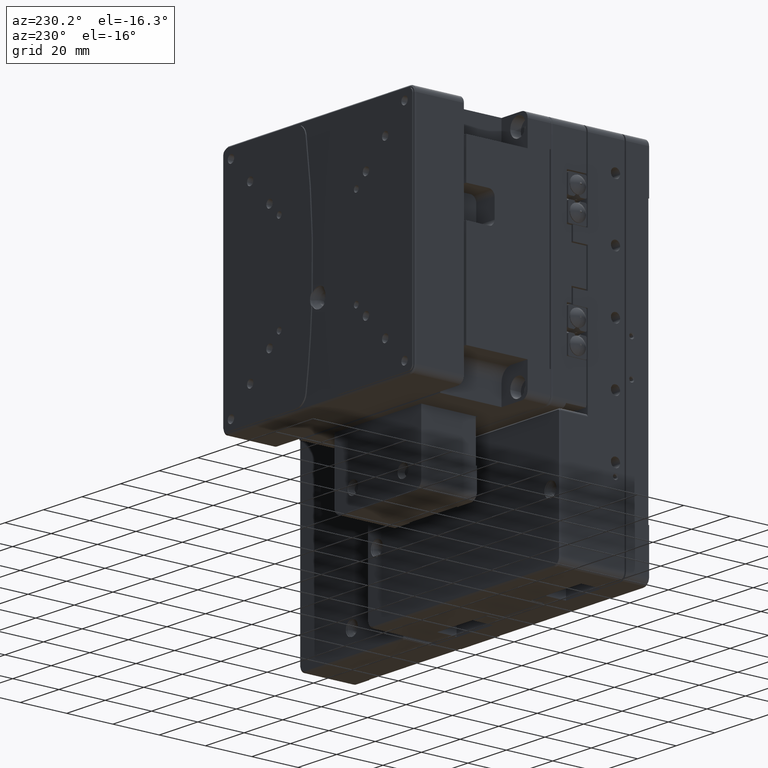
[diagram: clean part render]
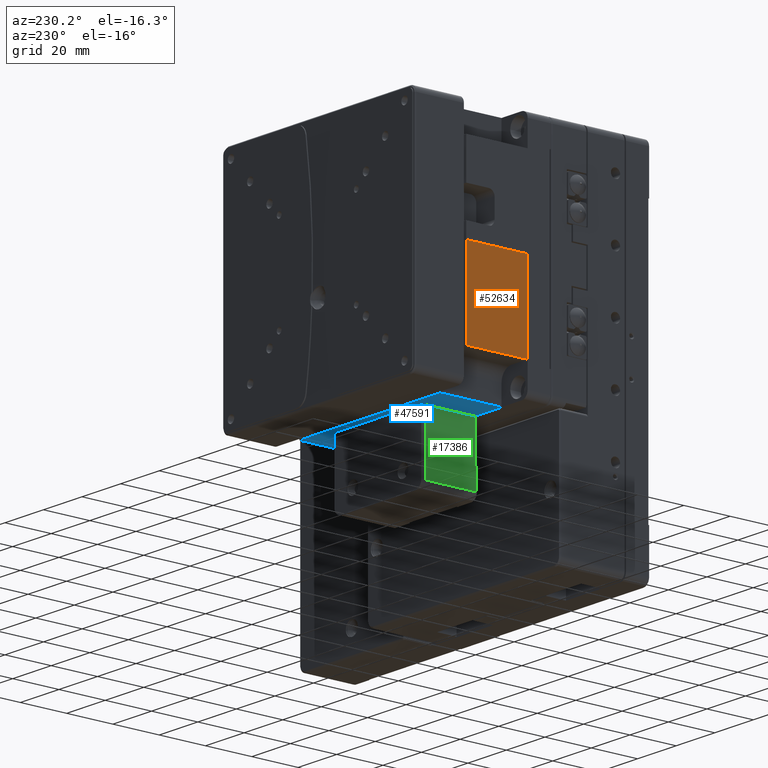
[diagram: same view with three faces highlighted in distinct colors, each labeled with its STEP entity id]
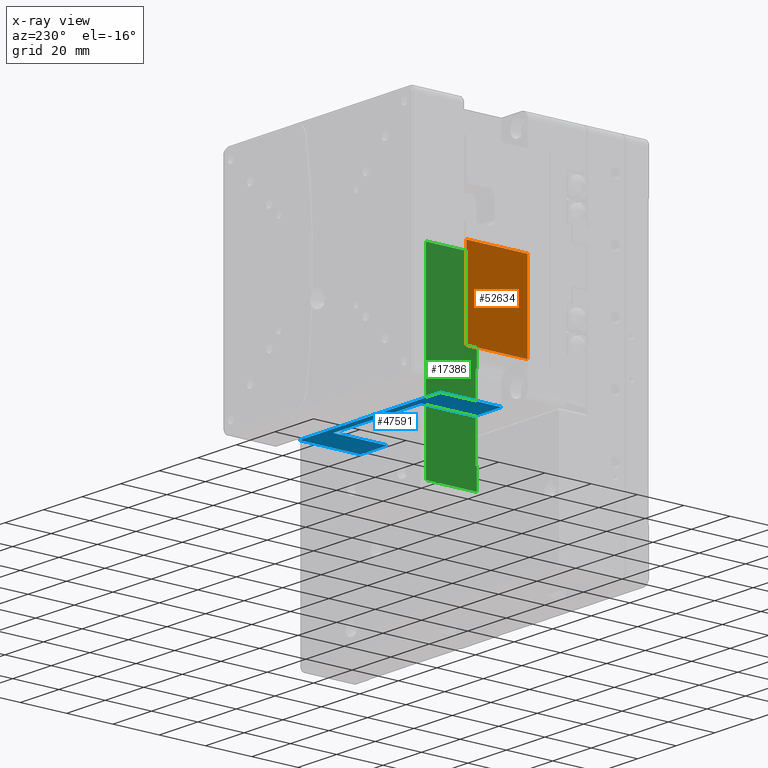
[diagram: x-ray of the same camera — body ghosted, the three highlighted faces saturated]
A machine part, auxiliary view with three faces highlighted in distinct colors.
The next image is the same camera in x-ray (body ghosted, the three faces saturated) — at least one of them is partly hidden behind the body in this view.
Their STEP definitions:

[orange] entity #52634 — the highlighted planar face has unit normal (1, 0, -0).
#678 = AXIS2_PLACEMENT_3D ( 'NONE', #17239, #21417, #47186 ) ;
#3614 = CARTESIAN_POINT ( 'NONE',  ( -50.00000000000001421, 52.50000000000002132, 2.471627407274680228E-14 ) ) ;
#3728 = ORIENTED_EDGE ( 'NONE', *, *, #24943, .T. ) ;
#4061 = CARTESIAN_POINT ( 'NONE',  ( -50.00000000000003553, 79.00000000000001421, 2.823262324349119962E-14 ) ) ;
#5109 = DIRECTION ( 'NONE',  ( -3.812484297624379892E-23, 1.000000000000000000, -3.650532473168982942E-23 ) ) ;
#5382 = LINE ( 'NONE', #8752, #29717 ) ;
#8752 = CARTESIAN_POINT ( 'NONE',  ( -50.00000000000000000, 205.8033988749895116, 2.471626847635643200E-14 ) ) ;
#9137 = ORIENTED_EDGE ( 'NONE', *, *, #23238, .T. ) ;
#9251 = VERTEX_POINT ( 'NONE', #52893 ) ;
#12404 = CARTESIAN_POINT ( 'NONE',  ( -50.00000000000008527, 52.50000000000000711, -36.49999999999997158 ) ) ;
#16577 = LINE ( 'NONE', #12404, #23827 ) ;
#17239 = CARTESIAN_POINT ( 'NONE',  ( -50.00000000000000000, 205.8033988749895116, 2.471626847635643200E-14 ) ) ;
#17506 = PLANE ( 'NONE',  #678 ) ;
#17876 = LINE ( 'NONE', #47799, #52805 ) ;
#18340 = VERTEX_POINT ( 'NONE', #26532 ) ;
#21417 = DIRECTION ( 'NONE',  ( 1.000000000000000000, 3.812484297624374602E-23, -1.387778780781445281E-15 ) ) ;
#23238 = EDGE_CURVE ( 'NONE', #33397, #18340, #5382, .T. ) ;
#23827 = VECTOR ( 'NONE', #29452, 1000.000000000000000 ) ;
#24943 = EDGE_CURVE ( 'NONE', #9251, #48479, #16577, .T. ) ;
#26532 = CARTESIAN_POINT ( 'NONE',  ( -50.00000000000001421, 79.00000000000001421, 2.357542518343177120E-14 ) ) ;
#28168 = ORIENTED_EDGE ( 'NONE', *, *, #44319, .T. ) ;
#29428 = ORIENTED_EDGE ( 'NONE', *, *, #42263, .F. ) ;
#29452 = DIRECTION ( 'NONE',  ( 3.812484297624379892E-23, -1.000000000000000000, 3.650532473168982942E-23 ) ) ;
#29717 = VECTOR ( 'NONE', #5109, 1000.000000000000000 ) ;
#30113 = FACE_OUTER_BOUND ( 'NONE', #33962, .T. ) ;
#33161 = DIRECTION ( 'NONE',  ( 1.387778780781445281E-15, 3.650532473168988232E-23, 1.000000000000000000 ) ) ;
#33397 = VERTEX_POINT ( 'NONE', #3614 ) ;
#33962 = EDGE_LOOP ( 'NONE', ( #3728, #28168, #9137, #29428 ) ) ;
#33985 = LINE ( 'NONE', #4061, #36511 ) ;
#36511 = VECTOR ( 'NONE', #33161, 1000.000000000000000 ) ;
#42263 = EDGE_CURVE ( 'NONE', #9251, #18340, #33985, .T. ) ;
#44319 = EDGE_CURVE ( 'NONE', #48479, #33397, #17876, .T. ) ;
#47186 = DIRECTION ( 'NONE',  ( -1.387778780781445281E-15, -3.650532473168988232E-23, -1.000000000000000000 ) ) ;
#47799 = CARTESIAN_POINT ( 'NONE',  ( -50.00000000000003553, 52.50000000000001421, 2.823262421088230864E-14 ) ) ;
#48479 = VERTEX_POINT ( 'NONE', #51486 ) ;
#51460 = DIRECTION ( 'NONE',  ( 1.387778780781445281E-15, 3.650532473168988232E-23, 1.000000000000000000 ) ) ;
#51486 = CARTESIAN_POINT ( 'NONE',  ( -50.00000000000007816, 52.50000000000000711, -36.49999999999997158 ) ) ;
#52634 = ADVANCED_FACE ( 'NONE', ( #30113 ), #17506, .F. ) ;
#52805 = VECTOR ( 'NONE', #51460, 1000.000000000000000 ) ;
#52893 = CARTESIAN_POINT ( 'NONE',  ( -50.00000000000007816, 79.00000000000001421, -36.49999999999997158 ) ) ;

[blue] entity #47591 — the highlighted planar face has unit normal (0, 0, 1).
#1571 = VECTOR ( 'NONE', #18427, 1000.000000000000000 ) ;
#2184 = VERTEX_POINT ( 'NONE', #8992 ) ;
#2923 = AXIS2_PLACEMENT_3D ( 'NONE', #36901, #37461, #12569 ) ;
#3359 = VECTOR ( 'NONE', #42180, 1000.000000000000000 ) ;
#4247 = DIRECTION ( 'NONE',  ( 3.812484297624379892E-23, -1.000000000000000000, 3.650532473168982942E-23 ) ) ;
#4279 = VECTOR ( 'NONE', #37604, 1000.000000000000000 ) ;
#4349 = CARTESIAN_POINT ( 'NONE',  ( -22.70000000000008811, 52.50000000000001421, -50.00000000000000711 ) ) ;
#5314 = DIRECTION ( 'NONE',  ( -1.000000000000000000, -3.812484297624374602E-23, 1.387778780781445281E-15 ) ) ;
#6467 = CARTESIAN_POINT ( 'NONE',  ( 36.49999999999990052, 52.50000000000000711, -50.00000000000009948 ) ) ;
#7269 = EDGE_CURVE ( 'NONE', #15963, #2184, #12943, .T. ) ;
#8376 = VECTOR ( 'NONE', #4247, 1000.000000000000000 ) ;
#8488 = DIRECTION ( 'NONE',  ( -3.812484297624379892E-23, 1.000000000000000000, -3.650532473168982942E-23 ) ) ;
#8992 = CARTESIAN_POINT ( 'NONE',  ( 22.69999999999993889, 75.80000000000001137, -50.00000000000007816 ) ) ;
#9152 = ORIENTED_EDGE ( 'NONE', *, *, #13428, .T. ) ;
#9738 = VERTEX_POINT ( 'NONE', #53019 ) ;
#10053 = CARTESIAN_POINT ( 'NONE',  ( -7.632783332422790971E-14, 52.50000000000001421, -50.00000000000003553 ) ) ;
#10383 = DIRECTION ( 'NONE',  ( -1.000000000000000000, 1.528390346484439017E-16, 1.387778780781445281E-15 ) ) ;
#11487 = PLANE ( 'NONE',  #2923 ) ;
#11775 = VERTEX_POINT ( 'NONE', #6467 ) ;
#12569 = DIRECTION ( 'NONE',  ( 1.000000000000000000, 3.812484297624374015E-23, -1.526556658859589849E-15 ) ) ;
#12943 = LINE ( 'NONE', #50760, #46919 ) ;
#13086 = ORIENTED_EDGE ( 'NONE', *, *, #13421, .F. ) ;
#13421 = EDGE_CURVE ( 'NONE', #9738, #30630, #39405, .T. ) ;
#13428 = EDGE_CURVE ( 'NONE', #11775, #15963, #47806, .T. ) ;
#15963 = VERTEX_POINT ( 'NONE', #24513 ) ;
#16850 = EDGE_CURVE ( 'NONE', #2184, #50230, #24948, .T. ) ;
#16939 = ORIENTED_EDGE ( 'NONE', *, *, #34200, .T. ) ;
#17652 = LINE ( 'NONE', #21807, #8376 ) ;
#17668 = ORIENTED_EDGE ( 'NONE', *, *, #7269, .T. ) ;
#17881 = CARTESIAN_POINT ( 'NONE',  ( -7.632783433453625790E-14, 79.00000000000001421, -50.00000000000004974 ) ) ;
#18427 = DIRECTION ( 'NONE',  ( -1.000000000000000000, -3.812484297624374602E-23, 1.387778780781445281E-15 ) ) ;
#19859 = EDGE_CURVE ( 'NONE', #32525, #36714, #20875, .T. ) ;
#20147 = VECTOR ( 'NONE', #42314, 1000.000000000000000 ) ;
#20536 = LINE ( 'NONE', #33145, #4279 ) ;
#20704 = EDGE_CURVE ( 'NONE', #9738, #11775, #37559, .T. ) ;
#20875 = LINE ( 'NONE', #33791, #3359 ) ;
#21807 = CARTESIAN_POINT ( 'NONE',  ( -22.70000000000009166, 52.50000000000001421, -50.00000000000000711 ) ) ;
#24513 = CARTESIAN_POINT ( 'NONE',  ( 22.69999999999994245, 52.50000000000001421, -50.00000000000007105 ) ) ;
#24948 = LINE ( 'NONE', #42021, #30989 ) ;
#26753 = ORIENTED_EDGE ( 'NONE', *, *, #19859, .T. ) ;
#30630 = VERTEX_POINT ( 'NONE', #43302 ) ;
#30989 = VECTOR ( 'NONE', #10383, 1000.000000000000000 ) ;
#32525 = VERTEX_POINT ( 'NONE', #4349 ) ;
#33145 = CARTESIAN_POINT ( 'NONE',  ( -36.50000000000012790, 52.50000000000000711, -49.99999999999998579 ) ) ;
#33791 = CARTESIAN_POINT ( 'NONE',  ( -7.632783332422792233E-14, 52.50000000000001421, -50.00000000000004263 ) ) ;
#34200 = EDGE_CURVE ( 'NONE', #50230, #32525, #17652, .T. ) ;
#36714 = VERTEX_POINT ( 'NONE', #43787 ) ;
#36901 = CARTESIAN_POINT ( 'NONE',  ( -50.00000000000007105, 205.8033988749895116, -49.99999999999997158 ) ) ;
#37461 = DIRECTION ( 'NONE',  ( 1.526556658859589849E-15, 3.650532473168988820E-23, 1.000000000000000000 ) ) ;
#37559 = LINE ( 'NONE', #54661, #20147 ) ;
#37604 = DIRECTION ( 'NONE',  ( -3.812484297624379892E-23, 1.000000000000000000, -3.650532473168982942E-23 ) ) ;
#38082 = ORIENTED_EDGE ( 'NONE', *, *, #54155, .T. ) ;
#39043 = VECTOR ( 'NONE', #5314, 1000.000000000000000 ) ;
#39383 = EDGE_LOOP ( 'NONE', ( #51202, #9152, #17668, #39778, #16939, #26753, #38082, #13086 ) ) ;
#39405 = LINE ( 'NONE', #17881, #1571 ) ;
#39778 = ORIENTED_EDGE ( 'NONE', *, *, #16850, .T. ) ;
#42021 = CARTESIAN_POINT ( 'NONE',  ( -22.70000000000008455, 75.80000000000001137, -50.00000000000000711 ) ) ;
#42180 = DIRECTION ( 'NONE',  ( -1.000000000000000000, -3.812484297624374602E-23, 1.387778780781445281E-15 ) ) ;
#42314 = DIRECTION ( 'NONE',  ( 3.812484297624379892E-23, -1.000000000000000000, 3.650532473168982942E-23 ) ) ;
#43302 = CARTESIAN_POINT ( 'NONE',  ( -36.50000000000012790, 79.00000000000001421, -49.99999999999998579 ) ) ;
#43787 = CARTESIAN_POINT ( 'NONE',  ( -36.50000000000012790, 52.50000000000000711, -49.99999999999998579 ) ) ;
#46919 = VECTOR ( 'NONE', #8488, 1000.000000000000000 ) ;
#47591 = ADVANCED_FACE ( 'NONE', ( #55100 ), #11487, .F. ) ;
#47806 = LINE ( 'NONE', #10053, #39043 ) ;
#50230 = VERTEX_POINT ( 'NONE', #52246 ) ;
#50760 = CARTESIAN_POINT ( 'NONE',  ( 22.69999999999993534, 52.50000000000000711, -50.00000000000007816 ) ) ;
#51202 = ORIENTED_EDGE ( 'NONE', *, *, #20704, .T. ) ;
#52246 = CARTESIAN_POINT ( 'NONE',  ( -22.70000000000009166, 75.80000000000001137, -50.00000000000000711 ) ) ;
#53019 = CARTESIAN_POINT ( 'NONE',  ( 36.49999999999990052, 79.00000000000001421, -50.00000000000009948 ) ) ;
#54155 = EDGE_CURVE ( 'NONE', #36714, #30630, #20536, .T. ) ;
#54661 = CARTESIAN_POINT ( 'NONE',  ( 36.49999999999990052, 52.50000000000000711, -50.00000000000009948 ) ) ;
#55100 = FACE_OUTER_BOUND ( 'NONE', #39383, .T. ) ;

[green] entity #17386 — the highlighted planar face has unit normal (1, 0, -0).
#905 = ORIENTED_EDGE ( 'NONE', *, *, #2449, .T. ) ;
#932 = LINE ( 'NONE', #48481, #13799 ) ;
#1738 = ORIENTED_EDGE ( 'NONE', *, *, #1803, .F. ) ;
#1803 = EDGE_CURVE ( 'NONE', #9027, #53722, #34773, .T. ) ;
#2449 = EDGE_CURVE ( 'NONE', #36673, #29451, #49257, .T. ) ;
#4117 = VERTEX_POINT ( 'NONE', #17203 ) ;
#6676 = DIRECTION ( 'NONE',  ( -1.662198313704330060E-15, -3.650532473168989407E-23, -1.000000000000000000 ) ) ;
#7043 = CARTESIAN_POINT ( 'NONE',  ( -22.49999999999998934, 52.00000000000001421, 9.499999999999994671 ) ) ;
#7243 = CARTESIAN_POINT ( 'NONE',  ( -22.49999999999998934, 51.50000000000001421, 9.499999999999994671 ) ) ;
#7561 = EDGE_CURVE ( 'NONE', #39906, #44011, #49303, .T. ) ;
#8477 = CARTESIAN_POINT ( 'NONE',  ( -22.50000000000009592, 73.50000000000001421, -49.00000000000001421 ) ) ;
#8653 = EDGE_CURVE ( 'NONE', #36673, #47658, #932, .T. ) ;
#8875 = ORIENTED_EDGE ( 'NONE', *, *, #49723, .F. ) ;
#9027 = VERTEX_POINT ( 'NONE', #52333 ) ;
#9189 = CARTESIAN_POINT ( 'NONE',  ( -22.50000000000013145, 51.50000000000001421, -76.00000000000000000 ) ) ;
#10928 = DIRECTION ( 'NONE',  ( -3.812484297624379892E-23, 1.000000000000000000, -3.650532473168982942E-23 ) ) ;
#12167 = CARTESIAN_POINT ( 'NONE',  ( -22.50000000000000711, 73.50000000000001421, 6.499999999999995559 ) ) ;
#12980 = CARTESIAN_POINT ( 'NONE',  ( -22.49999999999998934, 172.8836844602375038, 9.499999999999994671 ) ) ;
#13799 = VECTOR ( 'NONE', #40074, 1000.000000000000000 ) ;
#15614 = LINE ( 'NONE', #7243, #38572 ) ;
#15969 = LINE ( 'NONE', #7043, #50755 ) ;
#17203 = CARTESIAN_POINT ( 'NONE',  ( -22.50000000000013145, 73.50000000000001421, -76.00000000000000000 ) ) ;
#17386 = ADVANCED_FACE ( 'NONE', ( #52142 ), #35057, .F. ) ;
#17437 = VECTOR ( 'NONE', #18794, 1000.000000000000000 ) ;
#18794 = DIRECTION ( 'NONE',  ( 3.812484297624379892E-23, -1.000000000000000000, 3.650532473168982942E-23 ) ) ;
#19855 = CARTESIAN_POINT ( 'NONE',  ( -22.50000000000005684, 52.00000000000001421, -33.50000000000001421 ) ) ;
#20621 = EDGE_CURVE ( 'NONE', #4117, #39906, #21318, .T. ) ;
#21093 = AXIS2_PLACEMENT_3D ( 'NONE', #12980, #43461, #46827 ) ;
#21318 = LINE ( 'NONE', #8477, #26402 ) ;
#21873 = DIRECTION ( 'NONE',  ( -3.812484297624379892E-23, 1.000000000000000000, -3.650532473168982942E-23 ) ) ;
#22162 = CARTESIAN_POINT ( 'NONE',  ( -22.50000000000005684, 172.8836844602375038, -33.50000000000001421 ) ) ;
#23873 = EDGE_CURVE ( 'NONE', #44011, #9027, #15614, .T. ) ;
#26402 = VECTOR ( 'NONE', #54930, 1000.000000000000000 ) ;
#26628 = CARTESIAN_POINT ( 'NONE',  ( -22.49999999999999289, 51.50000000000001421, 6.499999999999995559 ) ) ;
#27581 = ORIENTED_EDGE ( 'NONE', *, *, #7561, .F. ) ;
#27619 = EDGE_LOOP ( 'NONE', ( #1738, #28492, #27581, #35514, #8875, #48523, #905, #42477 ) ) ;
#27679 = CARTESIAN_POINT ( 'NONE',  ( -22.50000000000012079, 51.50000000000001421, -67.00000000000001421 ) ) ;
#27983 = DIRECTION ( 'NONE',  ( -1.662198313704330060E-15, -3.650532473168989407E-23, -1.000000000000000000 ) ) ;
#28492 = ORIENTED_EDGE ( 'NONE', *, *, #23873, .F. ) ;
#29451 = VERTEX_POINT ( 'NONE', #40151 ) ;
#34773 = LINE ( 'NONE', #22162, #48013 ) ;
#35057 = PLANE ( 'NONE',  #21093 ) ;
#35514 = ORIENTED_EDGE ( 'NONE', *, *, #20621, .F. ) ;
#36673 = VERTEX_POINT ( 'NONE', #27679 ) ;
#38572 = VECTOR ( 'NONE', #6676, 1000.000000000000000 ) ;
#39157 = LINE ( 'NONE', #47003, #44155 ) ;
#39906 = VERTEX_POINT ( 'NONE', #12167 ) ;
#40074 = DIRECTION ( 'NONE',  ( -1.662198313704330060E-15, -3.650532473168989407E-23, -1.000000000000000000 ) ) ;
#40151 = CARTESIAN_POINT ( 'NONE',  ( -22.50000000000011724, 52.00000000000001421, -67.00000000000001421 ) ) ;
#40603 = CARTESIAN_POINT ( 'NONE',  ( -22.49999999999999289, 172.8836844602375038, 6.499999999999995559 ) ) ;
#41226 = EDGE_CURVE ( 'NONE', #53722, #29451, #15969, .T. ) ;
#42477 = ORIENTED_EDGE ( 'NONE', *, *, #41226, .F. ) ;
#43076 = DIRECTION ( 'NONE',  ( -3.812484297624379892E-23, 1.000000000000000000, -3.650532473168982942E-23 ) ) ;
#43461 = DIRECTION ( 'NONE',  ( 1.000000000000000000, 3.812484297624374015E-23, -1.662198313704330060E-15 ) ) ;
#44011 = VERTEX_POINT ( 'NONE', #26628 ) ;
#44155 = VECTOR ( 'NONE', #43076, 1000.000000000000000 ) ;
#44499 = CARTESIAN_POINT ( 'NONE',  ( -22.50000000000011724, 52.00000000000001421, -67.00000000000000000 ) ) ;
#46827 = DIRECTION ( 'NONE',  ( -1.662198313704330060E-15, -3.650532473168989407E-23, -1.000000000000000000 ) ) ;
#47003 = CARTESIAN_POINT ( 'NONE',  ( -22.50000000000013145, 172.8836844602375038, -76.00000000000000000 ) ) ;
#47658 = VERTEX_POINT ( 'NONE', #9189 ) ;
#48013 = VECTOR ( 'NONE', #21873, 1000.000000000000000 ) ;
#48481 = CARTESIAN_POINT ( 'NONE',  ( -22.49999999999998934, 51.50000000000001421, 9.499999999999994671 ) ) ;
#48523 = ORIENTED_EDGE ( 'NONE', *, *, #8653, .F. ) ;
#48946 = VECTOR ( 'NONE', #10928, 1000.000000000000000 ) ;
#49257 = LINE ( 'NONE', #44499, #48946 ) ;
#49303 = LINE ( 'NONE', #40603, #17437 ) ;
#49723 = EDGE_CURVE ( 'NONE', #47658, #4117, #39157, .T. ) ;
#50755 = VECTOR ( 'NONE', #27983, 1000.000000000000000 ) ;
#52142 = FACE_OUTER_BOUND ( 'NONE', #27619, .T. ) ;
#52333 = CARTESIAN_POINT ( 'NONE',  ( -22.50000000000005684, 51.50000000000001421, -33.50000000000001421 ) ) ;
#53722 = VERTEX_POINT ( 'NONE', #19855 ) ;
#54930 = DIRECTION ( 'NONE',  ( 1.387778780781445281E-15, -2.094251690768767893E-17, 1.000000000000000000 ) ) ;